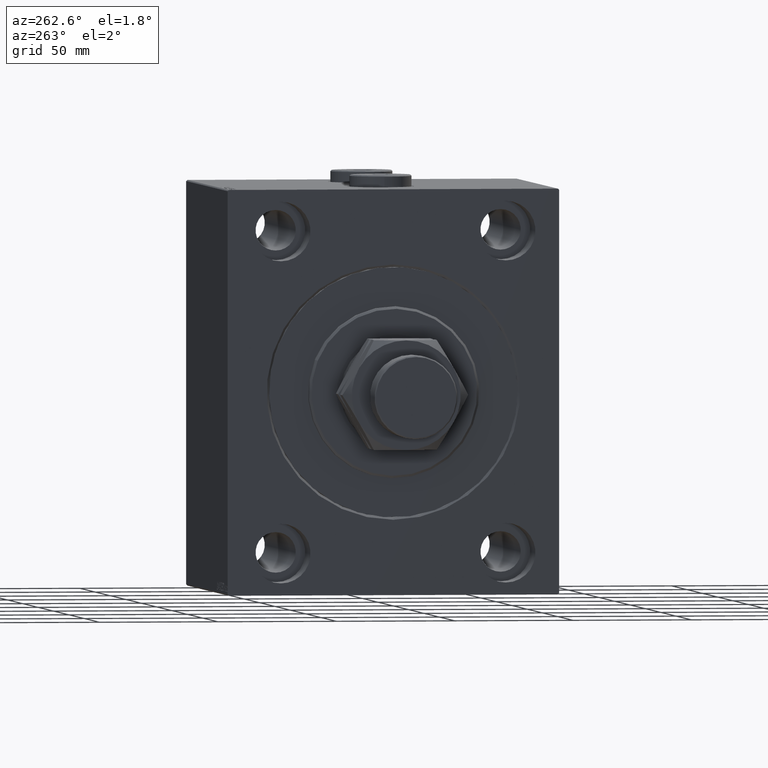
[diagram: clean part render]
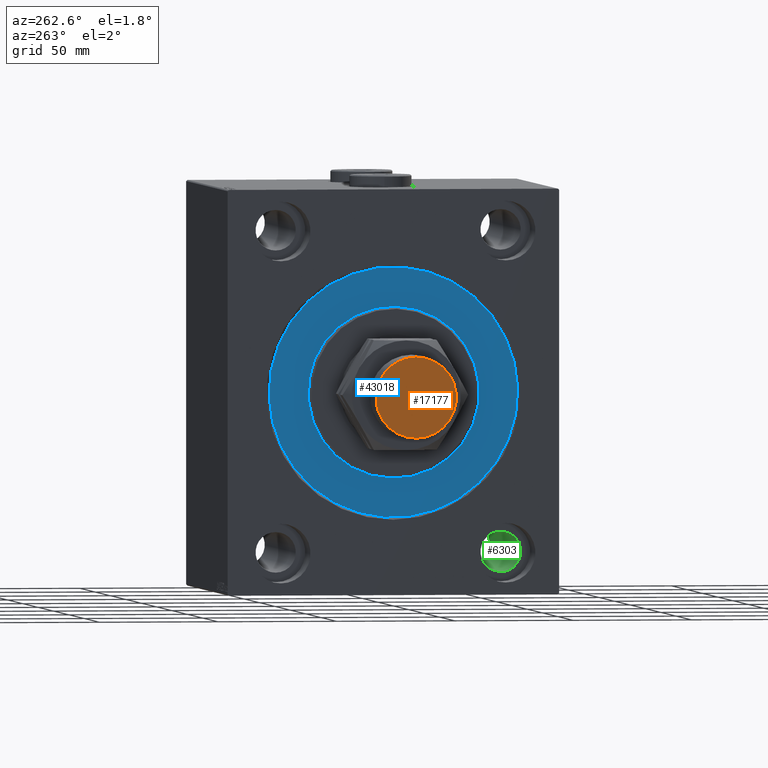
[diagram: same view with three faces highlighted in distinct colors, each labeled with its STEP entity id]
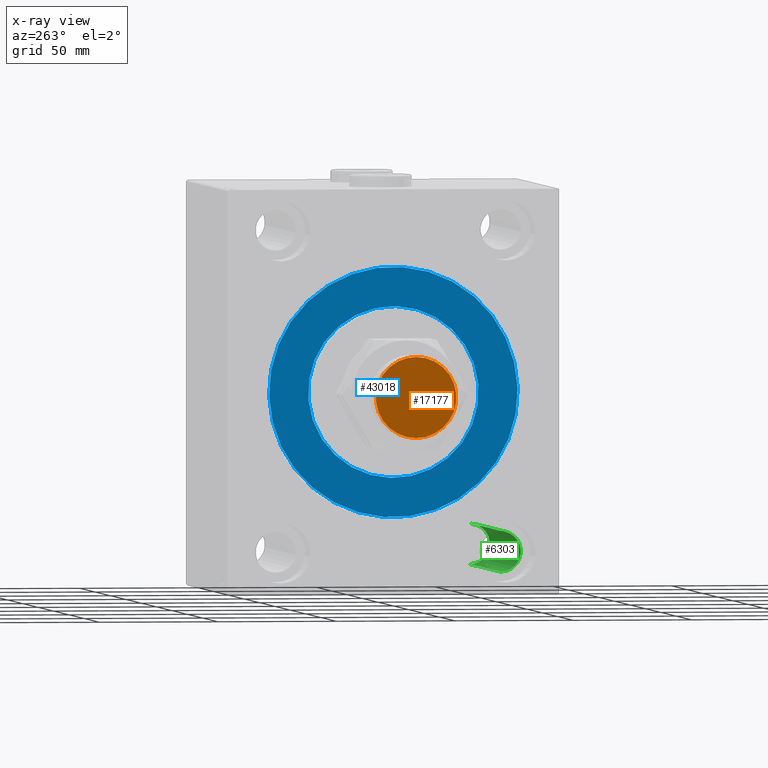
[diagram: x-ray of the same camera — body ghosted, the three highlighted faces saturated]
A machine part, auxiliary view with three faces highlighted in distinct colors.
The next image is the same camera in x-ray (body ghosted, the three faces saturated) — at least one of them is partly hidden behind the body in this view.
Their STEP definitions:

[orange] entity #17177 — the highlighted planar face has unit normal (-1, 0, 0).
#1753 = VERTEX_POINT ( 'NONE', #21227 ) ;
#1929 = CARTESIAN_POINT ( 'NONE',  ( 0.000000000000000000, 0.000000000000000000, 60.00000000000000000 ) ) ;
#4219 = PLANE ( 'NONE',  #24223 ) ;
#4256 = EDGE_CURVE ( 'NONE', #14568, #1753, #11411, .T. ) ;
#7459 = ORIENTED_EDGE ( 'NONE', *, *, #8248, .T. ) ;
#7757 = FACE_OUTER_BOUND ( 'NONE', #23566, .T. ) ;
#7995 = CARTESIAN_POINT ( 'NONE',  ( 0.000000000000000000, 0.000000000000000000, 60.00000000000000000 ) ) ;
#8202 = AXIS2_PLACEMENT_3D ( 'NONE', #17906, #32371, #43310 ) ;
#8248 = EDGE_CURVE ( 'NONE', #1753, #14568, #24066, .T. ) ;
#11411 = CIRCLE ( 'NONE', #22010, 16.99999999999998579 ) ;
#14568 = VERTEX_POINT ( 'NONE', #29842 ) ;
#17177 = ADVANCED_FACE ( 'NONE', ( #7757 ), #4219, .T. ) ;
#17906 = CARTESIAN_POINT ( 'NONE',  ( 0.000000000000000000, 0.000000000000000000, 60.00000000000000000 ) ) ;
#21227 = CARTESIAN_POINT ( 'NONE',  ( 16.99999999999998579, 2.112515728529183672E-15, 60.00000000000000000 ) ) ;
#22010 = AXIS2_PLACEMENT_3D ( 'NONE', #1929, #38627, #31280 ) ;
#23566 = EDGE_LOOP ( 'NONE', ( #36533, #7459 ) ) ;
#24066 = CIRCLE ( 'NONE', #8202, 16.99999999999998579 ) ;
#24223 = AXIS2_PLACEMENT_3D ( 'NONE', #7995, #40007, #36682 ) ;
#29842 = CARTESIAN_POINT ( 'NONE',  ( -16.99999999999998579, 0.000000000000000000, 60.00000000000000000 ) ) ;
#31280 = DIRECTION ( 'NONE',  ( 1.000000000000000000, 0.000000000000000000, 0.000000000000000000 ) ) ;
#32371 = DIRECTION ( 'NONE',  ( 0.000000000000000000, 0.000000000000000000, 1.000000000000000000 ) ) ;
#36533 = ORIENTED_EDGE ( 'NONE', *, *, #4256, .T. ) ;
#36682 = DIRECTION ( 'NONE',  ( 1.000000000000000000, 0.000000000000000000, -0.000000000000000000 ) ) ;
#38627 = DIRECTION ( 'NONE',  ( 0.000000000000000000, 0.000000000000000000, 1.000000000000000000 ) ) ;
#40007 = DIRECTION ( 'NONE',  ( 0.000000000000000000, 0.000000000000000000, 1.000000000000000000 ) ) ;
#43310 = DIRECTION ( 'NONE',  ( 1.000000000000000000, 0.000000000000000000, 0.000000000000000000 ) ) ;

[blue] entity #43018 — the highlighted planar face has unit normal (1, 0, -0).
#300 = EDGE_CURVE ( 'NONE', #30972, #6002, #45461, .T. ) ;
#576 = CARTESIAN_POINT ( 'NONE',  ( 0.000000000000000000, 0.000000000000000000, 0.000000000000000000 ) ) ;
#698 = CIRCLE ( 'NONE', #43094, 52.49999999999999289 ) ;
#1012 = CARTESIAN_POINT ( 'NONE',  ( 0.000000000000000000, 0.000000000000000000, 36.00000000000000000 ) ) ;
#2189 = DIRECTION ( 'NONE',  ( 0.000000000000000000, 0.000000000000000000, -1.000000000000000000 ) ) ;
#4953 = DIRECTION ( 'NONE',  ( -1.000000000000000000, 0.000000000000000000, 0.000000000000000000 ) ) ;
#5742 = FACE_BOUND ( 'NONE', #40474, .T. ) ;
#6002 = VERTEX_POINT ( 'NONE', #1012 ) ;
#7213 = EDGE_LOOP ( 'NONE', ( #8521, #23617 ) ) ;
#8493 = CARTESIAN_POINT ( 'NONE',  ( 0.000000000000000000, 0.000000000000000000, 0.000000000000000000 ) ) ;
#8521 = ORIENTED_EDGE ( 'NONE', *, *, #10588, .F. ) ;
#8682 = EDGE_CURVE ( 'NONE', #6002, #30972, #46845, .T. ) ;
#9286 = CARTESIAN_POINT ( 'NONE',  ( 0.000000000000000000, 0.000000000000000000, 0.000000000000000000 ) ) ;
#10361 = EDGE_CURVE ( 'NONE', #23674, #34179, #698, .T. ) ;
#10588 = EDGE_CURVE ( 'NONE', #34179, #23674, #46117, .T. ) ;
#11315 = AXIS2_PLACEMENT_3D ( 'NONE', #576, #44651, #37290 ) ;
#11589 = AXIS2_PLACEMENT_3D ( 'NONE', #9286, #44869, #26827 ) ;
#13307 = PLANE ( 'NONE',  #11589 ) ;
#13805 = CARTESIAN_POINT ( 'NONE',  ( 0.000000000000000000, 0.000000000000000000, -52.49999999999999289 ) ) ;
#14250 = ORIENTED_EDGE ( 'NONE', *, *, #300, .F. ) ;
#16286 = CARTESIAN_POINT ( 'NONE',  ( 0.000000000000000000, 0.000000000000000000, 0.000000000000000000 ) ) ;
#18052 = AXIS2_PLACEMENT_3D ( 'NONE', #45803, #34657, #2189 ) ;
#20129 = ORIENTED_EDGE ( 'NONE', *, *, #8682, .F. ) ;
#21192 = CARTESIAN_POINT ( 'NONE',  ( 0.000000000000000000, 6.429395695523603167E-15, 52.49999999999999289 ) ) ;
#23617 = ORIENTED_EDGE ( 'NONE', *, *, #10361, .F. ) ;
#23674 = VERTEX_POINT ( 'NONE', #21192 ) ;
#24311 = DIRECTION ( 'NONE',  ( 0.000000000000000000, 0.000000000000000000, 1.000000000000000000 ) ) ;
#24986 = AXIS2_PLACEMENT_3D ( 'NONE', #16286, #30749, #45225 ) ;
#26112 = CARTESIAN_POINT ( 'NONE',  ( 0.000000000000000000, 4.408728476930470856E-15, -36.00000000000000000 ) ) ;
#26827 = DIRECTION ( 'NONE',  ( 0.000000000000000000, 0.000000000000000000, 1.000000000000000000 ) ) ;
#27519 = FACE_OUTER_BOUND ( 'NONE', #7213, .T. ) ;
#30749 = DIRECTION ( 'NONE',  ( 1.000000000000000000, -0.000000000000000000, 0.000000000000000000 ) ) ;
#30972 = VERTEX_POINT ( 'NONE', #26112 ) ;
#34179 = VERTEX_POINT ( 'NONE', #13805 ) ;
#34657 = DIRECTION ( 'NONE',  ( 1.000000000000000000, -0.000000000000000000, 0.000000000000000000 ) ) ;
#37290 = DIRECTION ( 'NONE',  ( 0.000000000000000000, 0.000000000000000000, 1.000000000000000000 ) ) ;
#40474 = EDGE_LOOP ( 'NONE', ( #20129, #14250 ) ) ;
#43018 = ADVANCED_FACE ( 'NONE', ( #5742, #27519 ), #13307, .F. ) ;
#43094 = AXIS2_PLACEMENT_3D ( 'NONE', #8493, #4953, #24311 ) ;
#44651 = DIRECTION ( 'NONE',  ( -1.000000000000000000, 0.000000000000000000, 0.000000000000000000 ) ) ;
#44869 = DIRECTION ( 'NONE',  ( -1.000000000000000000, 0.000000000000000000, 0.000000000000000000 ) ) ;
#45225 = DIRECTION ( 'NONE',  ( 0.000000000000000000, 0.000000000000000000, -1.000000000000000000 ) ) ;
#45461 = CIRCLE ( 'NONE', #24986, 36.00000000000000000 ) ;
#45803 = CARTESIAN_POINT ( 'NONE',  ( 0.000000000000000000, 0.000000000000000000, 0.000000000000000000 ) ) ;
#46117 = CIRCLE ( 'NONE', #11315, 52.49999999999999289 ) ;
#46845 = CIRCLE ( 'NONE', #18052, 36.00000000000000000 ) ;

[green] entity #6303 — the highlighted cylindrical surface (edge-blend (fillet) strip) has radius 8.5 mm, axis along (-1, -0, -0).
#442 = CARTESIAN_POINT ( 'NONE',  ( 135.0000000000000000, -47.49999999999999289, -67.50000000000000000 ) ) ;
#1391 = DIRECTION ( 'NONE',  ( 0.000000000000000000, 0.000000000000000000, -1.000000000000000000 ) ) ;
#2421 = CARTESIAN_POINT ( 'NONE',  ( 17.00000000000000000, -47.49999999999999289, -76.00000000000000000 ) ) ;
#3490 = AXIS2_PLACEMENT_3D ( 'NONE', #40043, #23558, #12462 ) ;
#5218 = DIRECTION ( 'NONE',  ( -1.000000000000000000, -0.000000000000000000, -0.000000000000000000 ) ) ;
#6303 = ADVANCED_FACE ( 'NONE', ( #32902 ), #36921, .F. ) ;
#8668 = VERTEX_POINT ( 'NONE', #2421 ) ;
#11329 = DIRECTION ( 'NONE',  ( 0.000000000000000000, 0.000000000000000000, 1.000000000000000000 ) ) ;
#12462 = DIRECTION ( 'NONE',  ( 0.000000000000000000, 0.000000000000000000, 1.000000000000000000 ) ) ;
#14880 = DIRECTION ( 'NONE',  ( -1.000000000000000000, -0.000000000000000000, -0.000000000000000000 ) ) ;
#18557 = VECTOR ( 'NONE', #24700, 1000.000000000000000 ) ;
#19361 = VERTEX_POINT ( 'NONE', #24978 ) ;
#20850 = EDGE_CURVE ( 'NONE', #28290, #19361, #40784, .T. ) ;
#21627 = CIRCLE ( 'NONE', #3490, 8.499999999999992895 ) ;
#22496 = CARTESIAN_POINT ( 'NONE',  ( 135.0000000000000000, -47.49999999999999289, -59.00000000000001421 ) ) ;
#23039 = EDGE_LOOP ( 'NONE', ( #29740, #30927, #27577, #33071 ) ) ;
#23167 = CARTESIAN_POINT ( 'NONE',  ( 118.0000000000000142, -47.49999999999999289, -67.50000000000000000 ) ) ;
#23558 = DIRECTION ( 'NONE',  ( -1.000000000000000000, 0.000000000000000000, 0.000000000000000000 ) ) ;
#23559 = VECTOR ( 'NONE', #5218, 1000.000000000000000 ) ;
#24700 = DIRECTION ( 'NONE',  ( -1.000000000000000000, -0.000000000000000000, -0.000000000000000000 ) ) ;
#24978 = CARTESIAN_POINT ( 'NONE',  ( 17.00000000000000000, -47.49999999999999289, -59.00000000000001421 ) ) ;
#26318 = EDGE_CURVE ( 'NONE', #45641, #28290, #29810, .T. ) ;
#26483 = DIRECTION ( 'NONE',  ( -1.000000000000000000, -0.000000000000000000, -0.000000000000000000 ) ) ;
#27577 = ORIENTED_EDGE ( 'NONE', *, *, #36396, .T. ) ;
#28257 = LINE ( 'NONE', #38252, #18557 ) ;
#28290 = VERTEX_POINT ( 'NONE', #35824 ) ;
#29740 = ORIENTED_EDGE ( 'NONE', *, *, #26318, .F. ) ;
#29810 = CIRCLE ( 'NONE', #44953, 8.499999999999992895 ) ;
#30927 = ORIENTED_EDGE ( 'NONE', *, *, #34191, .T. ) ;
#32902 = FACE_OUTER_BOUND ( 'NONE', #23039, .T. ) ;
#33071 = ORIENTED_EDGE ( 'NONE', *, *, #20850, .F. ) ;
#34191 = EDGE_CURVE ( 'NONE', #45641, #8668, #28257, .T. ) ;
#35824 = CARTESIAN_POINT ( 'NONE',  ( 118.0000000000000142, -47.49999999999999289, -59.00000000000001421 ) ) ;
#36396 = EDGE_CURVE ( 'NONE', #8668, #19361, #21627, .T. ) ;
#36759 = CARTESIAN_POINT ( 'NONE',  ( 118.0000000000000142, -47.49999999999999289, -76.00000000000000000 ) ) ;
#36921 = CYLINDRICAL_SURFACE ( 'NONE', #39178, 8.499999999999992895 ) ;
#38252 = CARTESIAN_POINT ( 'NONE',  ( 135.0000000000000000, -47.49999999999999289, -76.00000000000000000 ) ) ;
#39178 = AXIS2_PLACEMENT_3D ( 'NONE', #442, #14880, #11329 ) ;
#40043 = CARTESIAN_POINT ( 'NONE',  ( 17.00000000000000000, -47.49999999999999289, -67.50000000000000000 ) ) ;
#40784 = LINE ( 'NONE', #22496, #23559 ) ;
#44953 = AXIS2_PLACEMENT_3D ( 'NONE', #23167, #26483, #1391 ) ;
#45641 = VERTEX_POINT ( 'NONE', #36759 ) ;